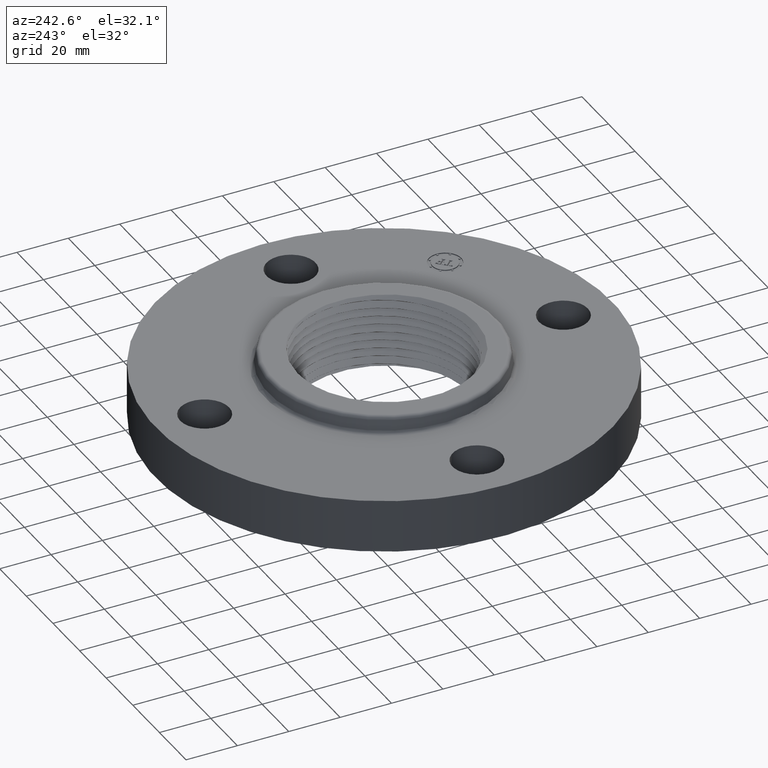
[diagram: clean part render]
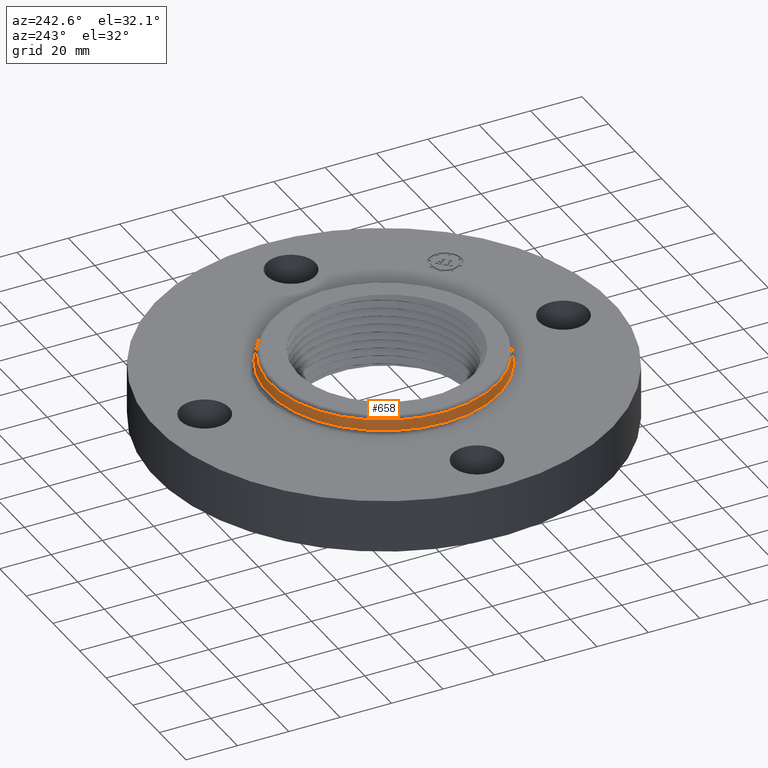
[diagram: same view with one face highlighted and labeled with its STEP entity id]
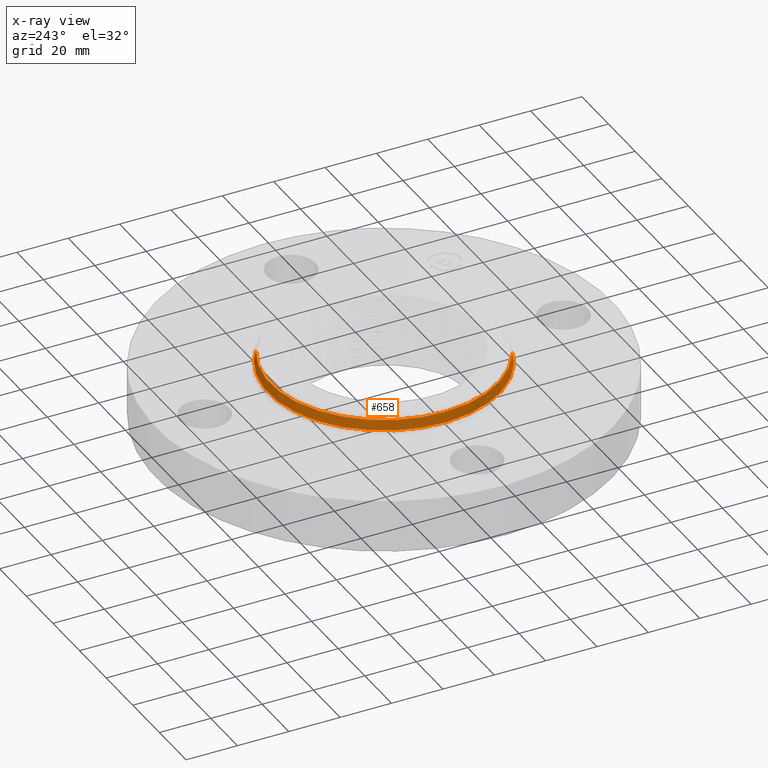
[diagram: x-ray of the same camera — body ghosted, the highlighted face saturated]
A machine part, auxiliary view. The second image highlights one B-rep face of the part: STEP entity #658.
The next image is the same camera in x-ray: the body ghosted, the highlighted face saturated — about 0% of this face is hidden behind the body in this view.
In plain terms, the highlighted conical surface has half-angle 10 deg.
Its self-contained STEP definition (entity closure, byte-faithful):
#592=AXIS2_PLACEMENT_3D('Circle Axis2P3D',#590,#591,$) ;
#631=AXIS2_PLACEMENT_3D('Cone Axis2P3D',#628,#629,#630) ;
#635=AXIS2_PLACEMENT_3D('Circle Axis2P3D',#633,#634,$) ;
#590=CARTESIAN_POINT('Axis2P3D Location',(0.,0.,1.01041889066)) ;
#594=CARTESIAN_POINT('Vertex',(-0.836434915982,-1.53108384372,1.01041889066)) ;
#596=CARTESIAN_POINT('Vertex',(0.836434915982,1.53108384372,1.01041889066)) ;
#628=CARTESIAN_POINT('Axis2P3D Location',(0.,0.,1.01041889066)) ;
#633=CARTESIAN_POINT('Axis2P3D Location',(0.,0.,0.859581109343)) ;
#637=CARTESIAN_POINT('Vertex',(-0.849186087031,-1.55442470576,0.859581109343)) ;
#639=CARTESIAN_POINT('Vertex',(0.849186087031,1.55442470576,0.859581109343)) ;
#642=CARTESIAN_POINT('Line Origine',(-0.842810501507,-1.54275427474,0.935000000004)) ;
#647=CARTESIAN_POINT('Line Origine',(0.842810501507,1.54275427474,0.935000000004)) ;
#591=DIRECTION('Axis2P3D Direction',(0.,0.,-0.0393700787402)) ;
#629=DIRECTION('Axis2P3D Direction',(0.,0.,-0.0393700787402)) ;
#630=DIRECTION('Axis2P3D XDirection',(0.0188750212049,0.0345504945626,0.)) ;
#634=DIRECTION('Axis2P3D Direction',(0.,0.,-0.0393700787402)) ;
#643=DIRECTION('Vector Direction',(-0.00327761303565,-0.00599963041829,-0.03877195878)) ;
#648=DIRECTION('Vector Direction',(0.00327761303565,0.00599963041829,-0.03877195878)) ;
#644=VECTOR('Line Direction',#643,0.0393700787402) ;
#649=VECTOR('Line Direction',#648,0.0393700787402) ;
#653=ORIENTED_EDGE('',*,*,#641,.F.) ;
#654=ORIENTED_EDGE('',*,*,#646,.T.) ;
#655=ORIENTED_EDGE('',*,*,#598,.T.) ;
#656=ORIENTED_EDGE('',*,*,#651,.F.) ;
#658=ADVANCED_FACE('PartBody',(#657),#632,.T.) ;
#593=CIRCLE('generated circle',#592,1.74466074214) ;
#636=CIRCLE('generated circle',#635,1.7712575127) ;
#632=CONICAL_SURFACE('Cone',#631,1.74466074214,0.174532925199) ;
#598=EDGE_CURVE('',#595,#597,#593,.T.) ;
#641=EDGE_CURVE('',#638,#640,#636,.T.) ;
#646=EDGE_CURVE('',#638,#595,#645,.F.) ;
#651=EDGE_CURVE('',#640,#597,#650,.F.) ;
#652=EDGE_LOOP('',(#653,#654,#655,#656)) ;
#657=FACE_OUTER_BOUND('',#652,.T.) ;
#645=LINE('Line',#642,#644) ;
#650=LINE('Line',#647,#649) ;
#595=VERTEX_POINT('',#594) ;
#597=VERTEX_POINT('',#596) ;
#638=VERTEX_POINT('',#637) ;
#640=VERTEX_POINT('',#639) ;